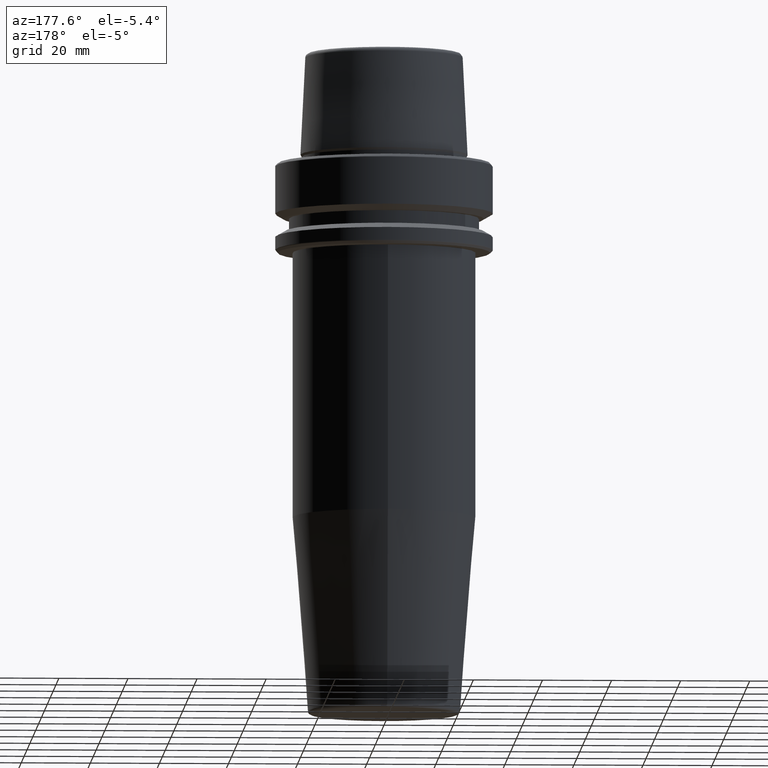
[diagram: clean part render]
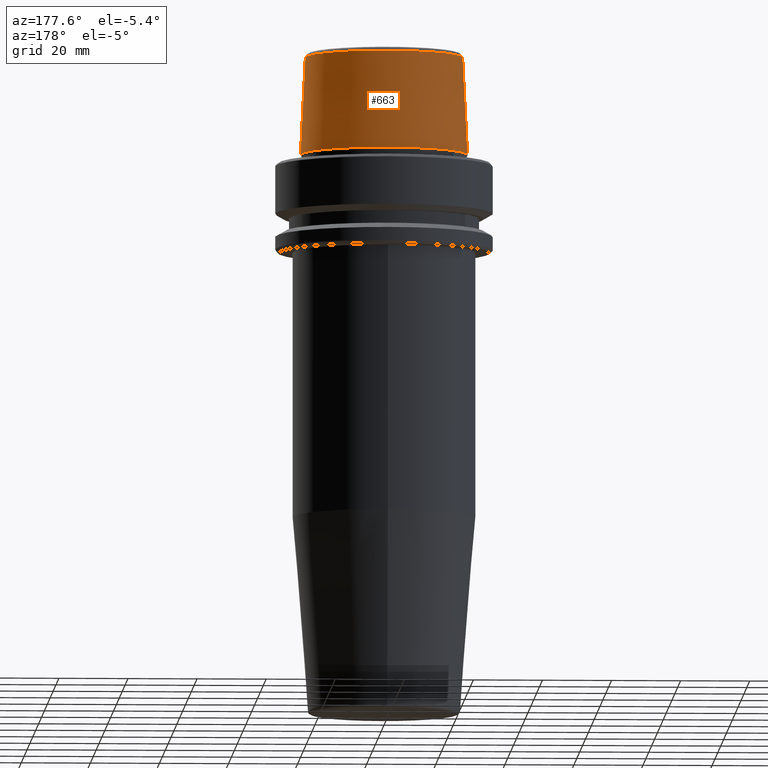
[diagram: same view with one face highlighted and labeled with its STEP entity id]
A machine part, auxiliary view. The second image highlights one B-rep face of the part: STEP entity #663.
In plain terms, the highlighted conical surface has half-angle 2.868 deg.
Its self-contained STEP definition (entity closure, byte-faithful):
#20 = LINE ( 'NONE', #250, #721 ) ;
#30 = CARTESIAN_POINT ( 'NONE',  ( 22.77957961851797100, 2.876386432489616700E-015, 30.76004333261571900 ) ) ;
#104 = DIRECTION ( 'NONE',  ( -0.0000000000000000000, -0.0000000000000000000, 1.000000000000000000 ) ) ;
#112 = FACE_OUTER_BOUND ( 'NONE', #1198, .T. ) ;
#134 = EDGE_CURVE ( 'NONE', #639, #578, #660, .T. ) ;
#151 = AXIS2_PLACEMENT_3D ( 'NONE', #979, #991, #301 ) ;
#250 = CARTESIAN_POINT ( 'NONE',  ( -24.19537568275369200, 0.0000000000000000000, 2.500000000000002200 ) ) ;
#270 = LINE ( 'NONE', #272, #422 ) ;
#272 = CARTESIAN_POINT ( 'NONE',  ( 24.19537568275369200, 2.963078938405201500E-015, 2.500000000000002200 ) ) ;
#301 = DIRECTION ( 'NONE',  ( 1.000000000000000000, 0.0000000000000000000, 0.0000000000000000000 ) ) ;
#390 = EDGE_CURVE ( 'NONE', #424, #639, #270, .T. ) ;
#421 = DIRECTION ( 'NONE',  ( 0.0000000000000000000, 0.0000000000000000000, -1.000000000000000000 ) ) ;
#422 = VECTOR ( 'NONE', #1250, 1000.000000000000200 ) ;
#424 = VERTEX_POINT ( 'NONE', #30 ) ;
#439 = EDGE_CURVE ( 'NONE', #961, #578, #20, .T. ) ;
#523 = CARTESIAN_POINT ( 'NONE',  ( 0.0000000000000000000, 0.0000000000000000000, 2.500000000000002200 ) ) ;
#574 = AXIS2_PLACEMENT_3D ( 'NONE', #788, #104, #691 ) ;
#578 = VERTEX_POINT ( 'NONE', #1123 ) ;
#601 = ORIENTED_EDGE ( 'NONE', *, *, #134, .T. ) ;
#639 = VERTEX_POINT ( 'NONE', #735 ) ;
#660 = CIRCLE ( 'NONE', #151, 24.19537568275369200 ) ;
#663 = ADVANCED_FACE ( 'NONE', ( #112 ), #833, .T. ) ;
#666 = AXIS2_PLACEMENT_3D ( 'NONE', #523, #421, #1206 ) ;
#691 = DIRECTION ( 'NONE',  ( 1.000000000000000000, 0.0000000000000000000, 0.0000000000000000000 ) ) ;
#721 = VECTOR ( 'NONE', #768, 1000.000000000000200 ) ;
#735 = CARTESIAN_POINT ( 'NONE',  ( 24.19537568275369200, 0.0000000000000000000, 2.500000000000002200 ) ) ;
#765 = CARTESIAN_POINT ( 'NONE',  ( -22.77957961851797100, 0.0000000000000000000, 30.76004333261571900 ) ) ;
#768 = DIRECTION ( 'NONE',  ( -0.05003611051310804400, 0.0000000000000000000, -0.9987474093306675200 ) ) ;
#788 = CARTESIAN_POINT ( 'NONE',  ( 0.0000000000000000000, 0.0000000000000000000, 30.76004333261571900 ) ) ;
#833 = CONICAL_SURFACE ( 'NONE', #666, 24.19537568275369200, 0.05005701257455997400 ) ;
#863 = EDGE_CURVE ( 'NONE', #424, #961, #1214, .T. ) ;
#906 = ORIENTED_EDGE ( 'NONE', *, *, #439, .F. ) ;
#944 = ORIENTED_EDGE ( 'NONE', *, *, #863, .F. ) ;
#961 = VERTEX_POINT ( 'NONE', #765 ) ;
#979 = CARTESIAN_POINT ( 'NONE',  ( 0.0000000000000000000, 0.0000000000000000000, 2.500000000000002200 ) ) ;
#991 = DIRECTION ( 'NONE',  ( -0.0000000000000000000, -0.0000000000000000000, 1.000000000000000000 ) ) ;
#1123 = CARTESIAN_POINT ( 'NONE',  ( -24.19537568275369200, 2.963078938405201500E-015, 2.500000000000002200 ) ) ;
#1167 = ORIENTED_EDGE ( 'NONE', *, *, #390, .T. ) ;
#1198 = EDGE_LOOP ( 'NONE', ( #944, #1167, #601, #906 ) ) ;
#1206 = DIRECTION ( 'NONE',  ( -1.000000000000000000, 0.0000000000000000000, 0.0000000000000000000 ) ) ;
#1214 = CIRCLE ( 'NONE', #574, 22.77957961851797100 ) ;
#1250 = DIRECTION ( 'NONE',  ( 0.05003611051310804400, 6.127656258166099700E-018, -0.9987474093306675200 ) ) ;